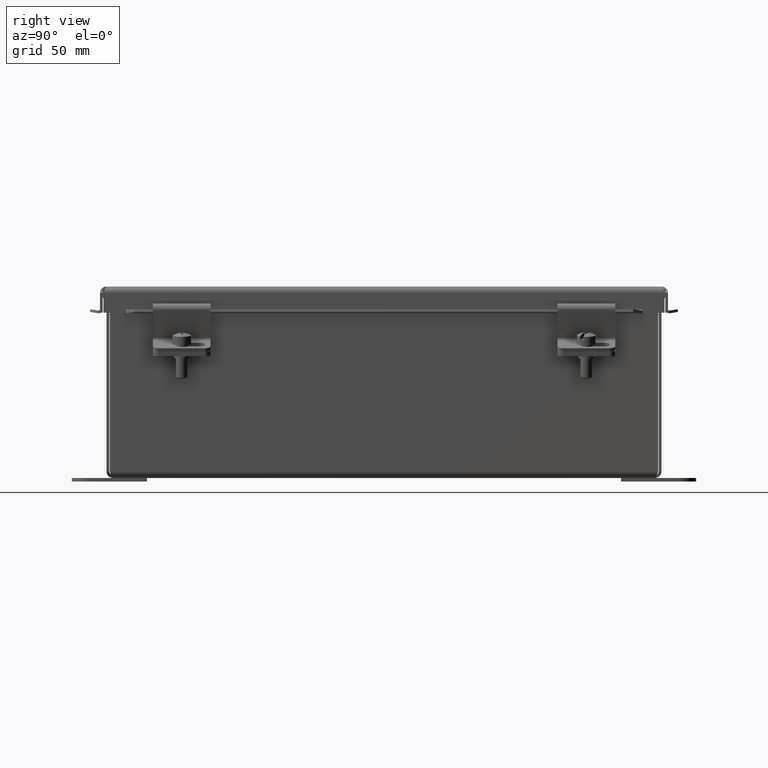
[diagram: clean part render]
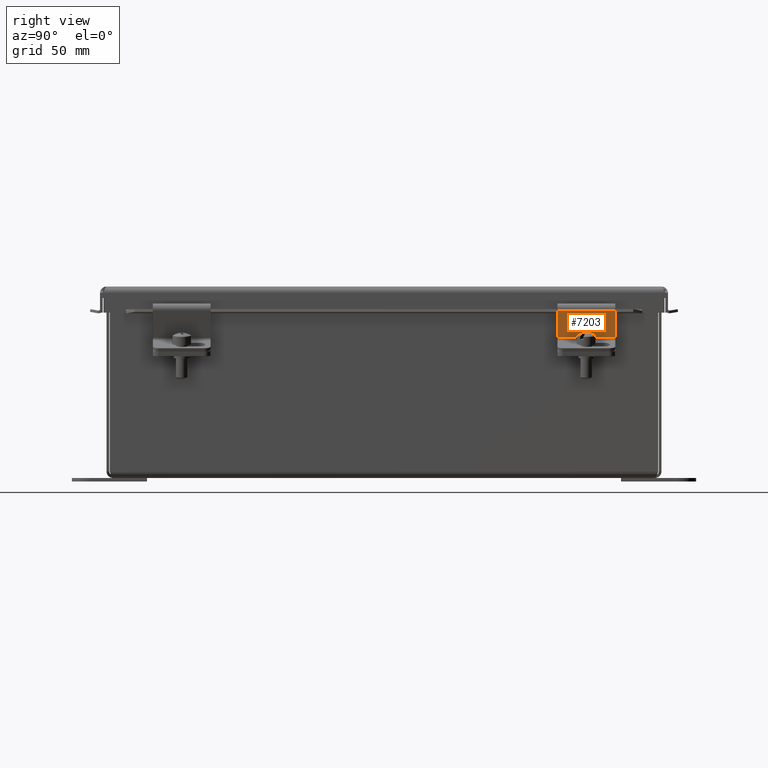
[diagram: same view with one face highlighted and labeled with its STEP entity id]
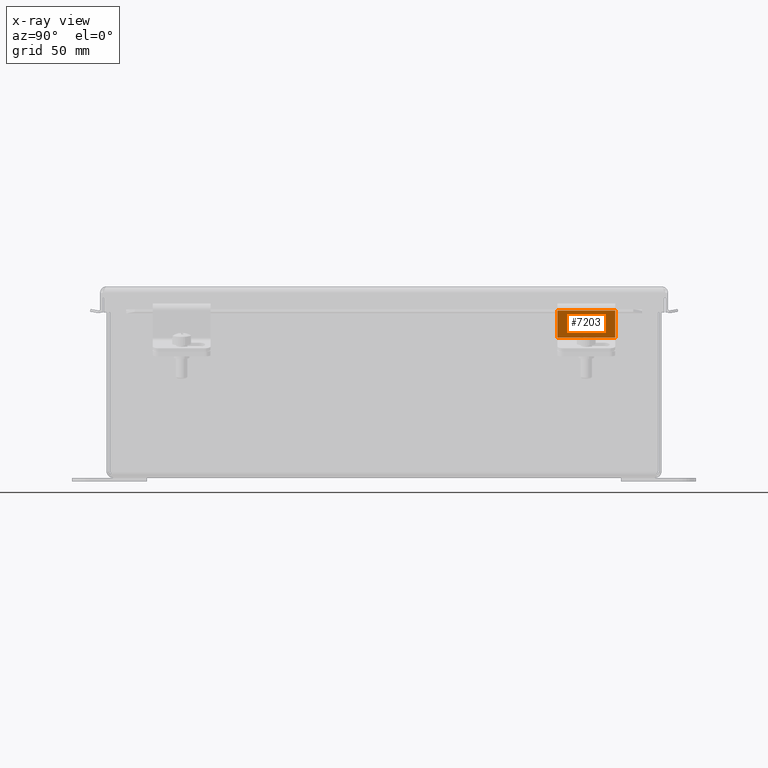
[diagram: x-ray of the same camera — body ghosted, the highlighted face saturated]
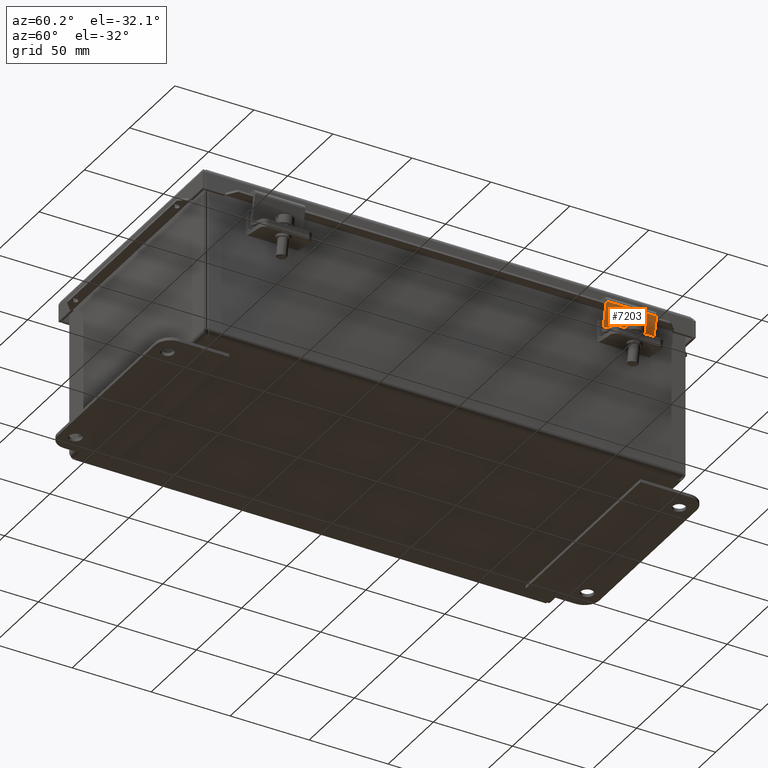
[diagram: same view with one face highlighted and labeled with its STEP entity id]
A machine part, right view. The second image highlights one B-rep face of the part: STEP entity #7203.
The next image is the same camera in x-ray: the body ghosted, the highlighted face saturated — about 0% of this face is hidden behind the body in this view.
A second angle (auxiliary view) of the same face is appended — the face is thin or edge-on in the first view.
In plain terms, the highlighted planar face has unit normal (0.9732, -0, -0.23).
Its self-contained STEP definition (entity closure, byte-faithful):
#619=PLANE('',#7885);
#915=LINE('',#10638,#1653);
#916=LINE('',#10642,#1654);
#917=LINE('',#10644,#1655);
#918=LINE('',#10645,#1656);
#1653=VECTOR('',#8635,0.393700787401575);
#1654=VECTOR('',#8640,0.393700787401575);
#1655=VECTOR('',#8641,0.393700787401575);
#1656=VECTOR('',#8642,0.393700787401575);
#2476=FACE_OUTER_BOUND('',#2893,.T.);
#2893=EDGE_LOOP('',(#5347,#5348,#5349,#5350));
#3577=VERTEX_POINT('',#10635);
#3578=VERTEX_POINT('',#10637);
#3579=VERTEX_POINT('',#10641);
#3580=VERTEX_POINT('',#10643);
#4243=EDGE_CURVE('',#3578,#3577,#915,.T.);
#4245=EDGE_CURVE('',#3577,#3579,#916,.T.);
#4246=EDGE_CURVE('',#3580,#3579,#917,.T.);
#4247=EDGE_CURVE('',#3580,#3578,#918,.T.);
#5347=ORIENTED_EDGE('',*,*,#4245,.T.);
#5348=ORIENTED_EDGE('',*,*,#4246,.F.);
#5349=ORIENTED_EDGE('',*,*,#4247,.T.);
#5350=ORIENTED_EDGE('',*,*,#4243,.T.);
#7203=ADVANCED_FACE('',(#2476),#619,.T.);
#7885=AXIS2_PLACEMENT_3D('',#10640,#8638,#8639);
#8635=DIRECTION('',(0.,0.,1.));
#8638=DIRECTION('center_axis',(-0.996194698091746,0.0871557427476579,0.));
#8639=DIRECTION('ref_axis',(0.,0.,1.));
#8640=DIRECTION('',(0.0871557427476579,0.996194698091746,0.));
#8641=DIRECTION('',(0.,0.,1.));
#8642=DIRECTION('',(-0.0871557427476579,-0.996194698091746,0.));
#10635=CARTESIAN_POINT('',(0.56276026597978,0.132509188206898,1.25));
#10637=CARTESIAN_POINT('',(0.56276026597978,0.132509188206898,0.));
#10638=CARTESIAN_POINT('',(0.56276026597978,0.132509188206898,0.));
#10640=CARTESIAN_POINT('Origin',(0.56276026597978,0.132509188206898,0.));
#10641=CARTESIAN_POINT('',(0.614857353517642,0.727981623586205,1.25));
#10642=CARTESIAN_POINT('',(0.614857353517642,0.727981623586205,1.25));
#10643=CARTESIAN_POINT('',(0.614857353517642,0.727981623586205,0.));
#10644=CARTESIAN_POINT('',(0.614857353517642,0.727981623586205,0.));
#10645=CARTESIAN_POINT('',(0.614857353517642,0.727981623586205,0.));